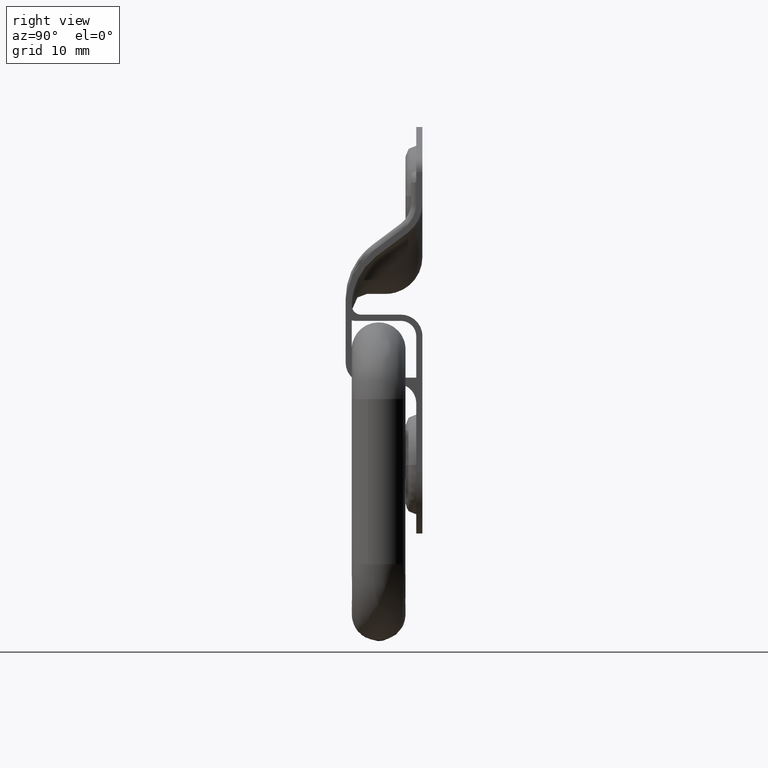
[diagram: clean part render]
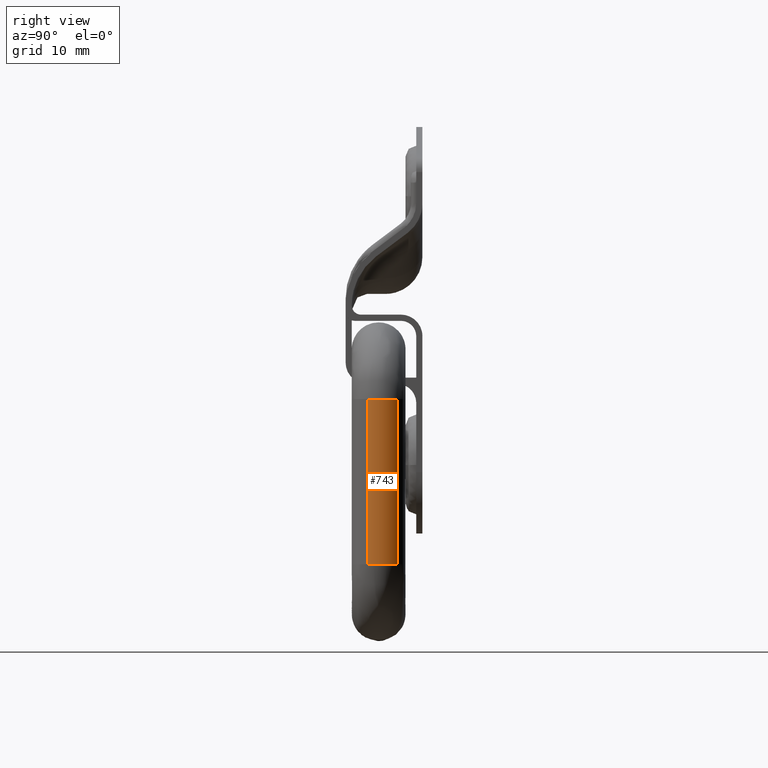
[diagram: same view with one face highlighted and labeled with its STEP entity id]
A machine part, right view. The second image highlights one B-rep face of the part: STEP entity #743.
In plain terms, the highlighted face is a freeform B-spline surface patch.
Its self-contained STEP definition (entity closure, byte-faithful):
#524=CARTESIAN_POINT('',(32.202097768090653,-1.413000312539352,-27.999549020345849));
#525=VERTEX_POINT('',#524);
#541=CARTESIAN_POINT('',(32.202097768135829,-1.413000312561735,-6.499999999998240));
#542=VERTEX_POINT('',#541);
#543=CARTESIAN_POINT('',(32.202097768135829,-1.413000312561735,-6.499999999998240));
#544=CARTESIAN_POINT('',(32.202097768090653,-1.413000312539352,-27.999549020345849));
#545=QUASI_UNIFORM_CURVE('',1,(#543,#544),.UNSPECIFIED.,.F.,.U.);
#546=EDGE_CURVE('',#542,#525,#545,.T.);
#597=CARTESIAN_POINT('',(31.453182381651860,2.496376614615160,-6.499999999983498));
#598=VERTEX_POINT('',#597);
#612=CARTESIAN_POINT('',(31.453182208105751,2.496376785229605,-27.999549020209290));
#613=VERTEX_POINT('',#612);
#614=CARTESIAN_POINT('',(31.453182381651860,2.496376614615160,-6.499999999983498));
#615=CARTESIAN_POINT('',(31.453182208105751,2.496376785229605,-27.999549020209290));
#616=QUASI_UNIFORM_CURVE('',1,(#614,#615),.UNSPECIFIED.,.F.,.U.);
#617=EDGE_CURVE('',#598,#613,#616,.T.);
#669=CARTESIAN_POINT('',(31.453182425049480,2.496376572039635,-5.962511274031301));
#670=CARTESIAN_POINT('',(33.178875323111249,0.800542884136146,-5.962511274031300));
#671=CARTESIAN_POINT('',(32.202097768144341,-1.413000312542440,-5.962511274031300));
#672=CARTESIAN_POINT('',(31.453182425049480,2.496376572039635,-28.550474965229419));
#673=CARTESIAN_POINT('',(33.178875323111249,0.800542884136146,-28.550474965229419));
#674=CARTESIAN_POINT('',(32.202097768144341,-1.413000312542440,-28.550474965229419));
#682=(BOUNDED_SURFACE()B_SPLINE_SURFACE(2,1,((#669,#672),(#670,#673),(#671,#674)),.UNSPECIFIED.,.F.,.F.,.U.)B_SPLINE_SURFACE_WITH_KNOTS((3,3),(2,2),(0.0,4.364103623589291),(0.0,22.587963691198119),.UNSPECIFIED.)GEOMETRIC_REPRESENTATION_ITEM()RATIONAL_B_SPLINE_SURFACE(((1.0,1.0),(0.777401153701776,0.777401153701776),(0.893152553776853,0.893152553776853)))REPRESENTATION_ITEM('')SURFACE());
#683=CARTESIAN_POINT('',(32.500000000000000,0.0,-27.999549020209301));
#684=VERTEX_POINT('',#683);
#685=CARTESIAN_POINT('',(32.500000000000000,0.0,-27.999549020209301));
#686=CARTESIAN_POINT('',(32.500000000000000,-0.737903454244269,-27.999549020209297));
#687=CARTESIAN_POINT('',(32.202097768090653,-1.413000312539353,-27.999549020345849));
#695=(BOUNDED_CURVE()B_SPLINE_CURVE(2,(#685,#686,#687),.UNSPECIFIED.,.F.,.U.)B_SPLINE_CURVE_WITH_KNOTS((3,3),(0.0,0.068552886979501),.UNSPECIFIED.)CURVE()GEOMETRIC_REPRESENTATION_ITEM()RATIONAL_B_SPLINE_CURVE((1.0,0.919685297094477,0.883417032197550))REPRESENTATION_ITEM(''));
#696=EDGE_CURVE('',#684,#525,#695,.T.);
#697=ORIENTED_EDGE('',*,*,#696,.F.);
#698=CARTESIAN_POINT('',(31.453182208105751,2.496376785229605,-27.999549020209297));
#699=CARTESIAN_POINT('',(32.500000000000000,1.467672163800765,-27.999549020209301));
#700=CARTESIAN_POINT('',(32.500000000000000,0.0,-27.999549020209301));
#708=(BOUNDED_CURVE()B_SPLINE_CURVE(2,(#698,#699,#700),.UNSPECIFIED.,.F.,.U.)B_SPLINE_CURVE_WITH_KNOTS((3,3),(0.873683216182977,1.0),.UNSPECIFIED.)CURVE()GEOMETRIC_REPRESENTATION_ITEM()RATIONAL_B_SPLINE_CURVE((0.853569641898838,0.852010682390676,1.0))REPRESENTATION_ITEM(''));
#709=EDGE_CURVE('',#613,#684,#708,.T.);
#710=ORIENTED_EDGE('',*,*,#709,.F.);
#711=ORIENTED_EDGE('',*,*,#617,.F.);
#712=CARTESIAN_POINT('',(32.500000000000000,0.0,-6.499999999998240));
#713=VERTEX_POINT('',#712);
#714=CARTESIAN_POINT('',(31.453182381651867,2.496376614615161,-6.499999999983498));
#715=CARTESIAN_POINT('',(32.499999999999993,1.467671877575696,-6.499999999998239));
#716=CARTESIAN_POINT('',(32.500000000000000,0.0,-6.499999999998240));
#724=(BOUNDED_CURVE()B_SPLINE_CURVE(2,(#714,#715,#716),.UNSPECIFIED.,.F.,.U.)B_SPLINE_CURVE_WITH_KNOTS((3,3),(0.873683237171637,1.0),.UNSPECIFIED.)CURVE()GEOMETRIC_REPRESENTATION_ITEM()RATIONAL_B_SPLINE_CURVE((0.853569641380772,0.852010706980422,1.0))REPRESENTATION_ITEM(''));
#725=EDGE_CURVE('',#598,#713,#724,.T.);
#726=ORIENTED_EDGE('',*,*,#725,.T.);
#727=CARTESIAN_POINT('',(32.500000000000000,0.0,-6.499999999998240));
#728=CARTESIAN_POINT('',(32.500000000000007,-0.737903454281520,-6.499999999998240));
#729=CARTESIAN_POINT('',(32.202097768135829,-1.413000312561735,-6.499999999998240));
#737=(BOUNDED_CURVE()B_SPLINE_CURVE(2,(#727,#728,#729),.UNSPECIFIED.,.F.,.U.)B_SPLINE_CURVE_WITH_KNOTS((3,3),(0.0,0.068552886982684),.UNSPECIFIED.)CURVE()GEOMETRIC_REPRESENTATION_ITEM()RATIONAL_B_SPLINE_CURVE((1.0,0.919685297090748,0.883417032194182))REPRESENTATION_ITEM(''));
#738=EDGE_CURVE('',#713,#542,#737,.T.);
#739=ORIENTED_EDGE('',*,*,#738,.T.);
#740=ORIENTED_EDGE('',*,*,#546,.T.);
#741=EDGE_LOOP('',(#697,#710,#711,#726,#739,#740));
#742=FACE_OUTER_BOUND('',#741,.T.);
#743=ADVANCED_FACE('',(#742),#682,.T.);